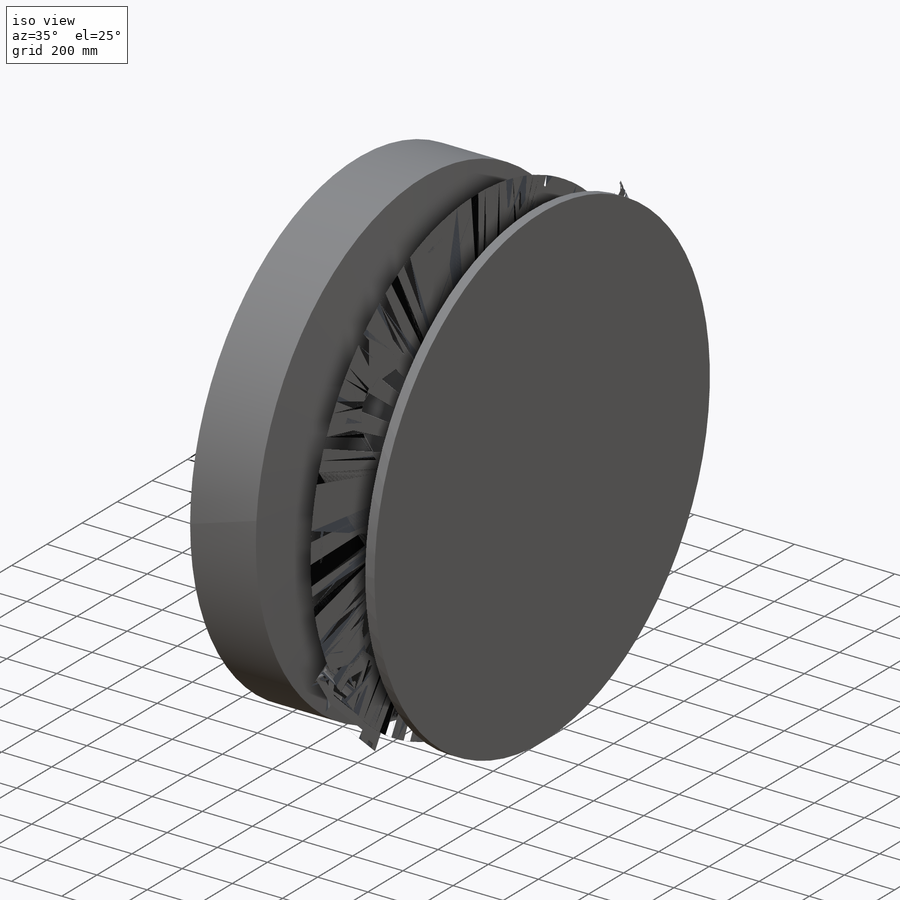
[diagram: iso view]
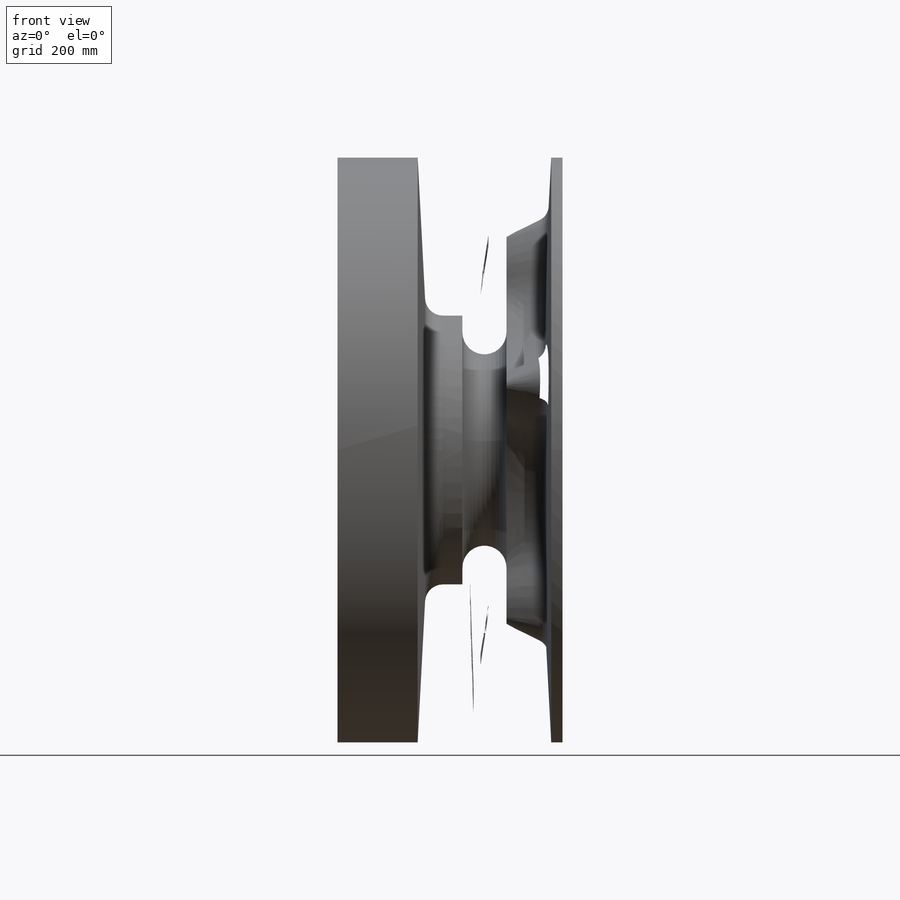
[diagram: front view]
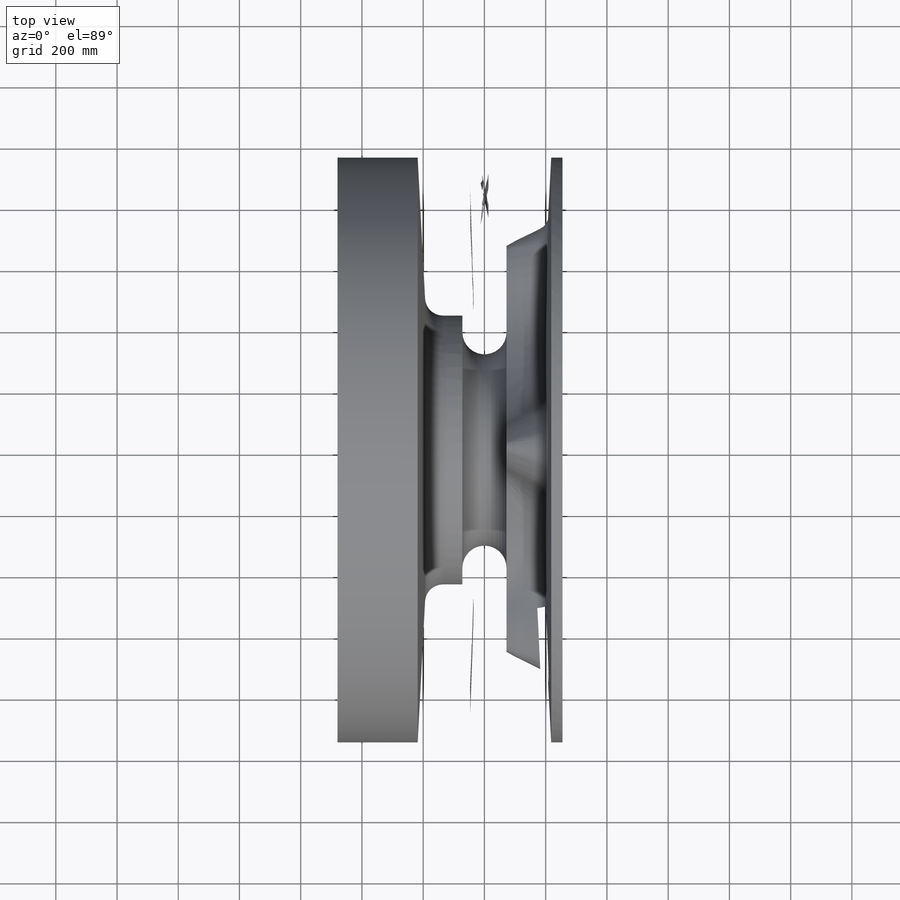
[diagram: top view]
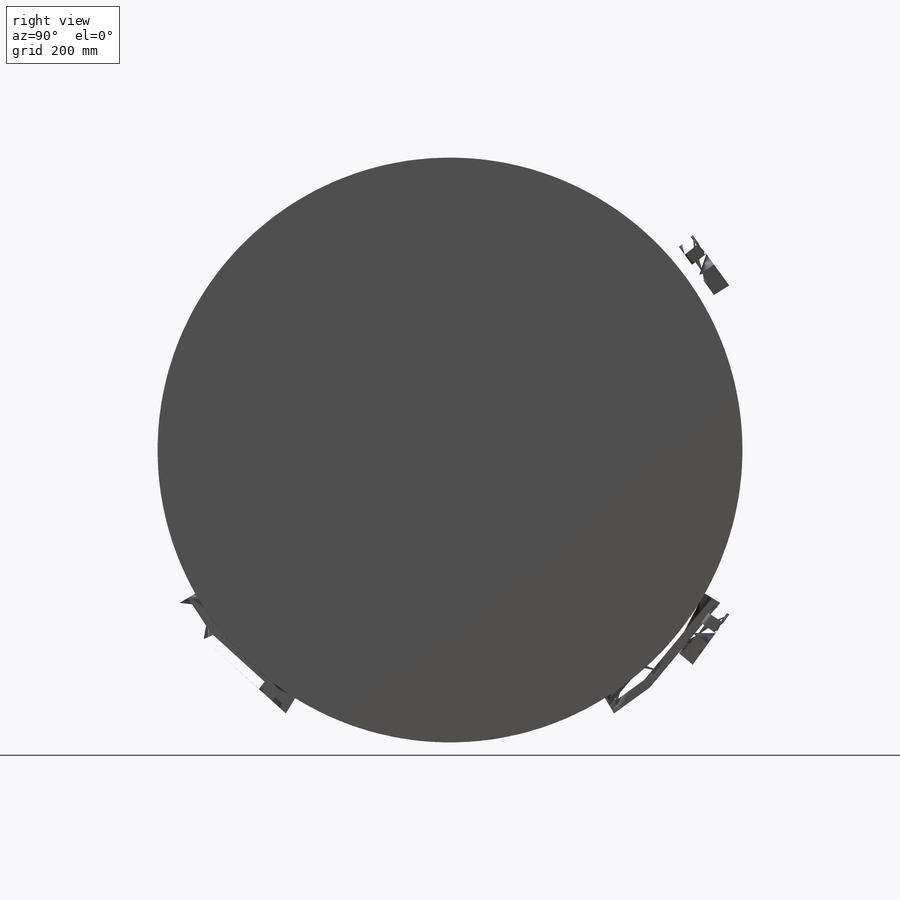
[diagram: right view]
SOLIDWORKS PART (.sldprt)
format: sldprt  version: not decoded by parser v0  size: 1,678,336 bytes
history: native  units: mm
features: sketch x28, plane x17, cut_revolve x5, fillet x5, hole x4, cut_extrude x3, revolve x2, material x1, extrude x1, pattern_circular x1, mirror x1, chamfer x1 (+9 scaffold rows collapsed)
feature tree (78):
  scaffold x9  (default folders/planes/origin — collapsed)
  material  "GS- 52"
  plane  "Vorne"
  plane  "Oben"
  plane  "Rechts"
  sketch  "SkizzeBasiskörper"  dims[c1.D4=20.0mm c1.VerrundungKettenbett=36.0mm c1.D3=36.0mm c1.D8=150.0mm c1.D10=150.0mm c1.D11=80.0mm c1.D12=50.0mm c2.D8=100.0mm c2.D13=75.0mm c2.D10=~49.586607mm c3.D13=40.0mm c3.D14=40.0mm c4.D13=32.0mm c4.D14=32.0mm c5.D13=~41.156892mm c5.D14=~70.295852mm c5.D4=40.0mm c5.D7=72.0mm c5.D3=144.0mm c5.D8=58.5mm c5.D9=72.0mm c6.D3=72.0mm c6.D5=72.0mm c6.D1=200.0mm c6.EntfSteg=70.0mm c6.RadiusUnten=295.0mm c6.RKettennuss=450.0mm c6.srechts=25.0mm c6.slinks=25.0mm c6.D7=145.0mm c6.RadiusInnen=273.0mm c6.D9=385.0mm c6.D10=~1061.716619mm c6.ÖffWinkhalb=3.0deg c6.D11=340.0mm c6.ÖffnWinkel=10.0deg c6.D12=290.0mm c6.sBremse=25.0mm c6.D14=620.0mm c6.Breite=400.0mm c6.D6=200.0mm c7.D7=~290.316717mm c7.StegAußen=72.0mm c7.BreiteSteg=150.0mm c7.BreiteBremsring=200.0mm c7.D2=~60.406771mm c7.D3=~588.684042mm c7.D1=~52.065958mm c7.D4=160.0mm c7.D5=175.0mm c7.D6=380.0mm c7.l1=263.0mm c7.D8=~65.666666mm c7.Wboden=155.0deg c7.D9=75.0mm c7.D10=200.0mm c7.D11=~388.684042mm c8.D7=~153.534317mm c8.Breite=337.5mm c8.halbe Breite=163.0mm c8.BreiteBremse=200.0mm c8.BreiteUnten=238.0mm c9.Breite=330.0mm c9.D1=~225.095496mm c9.Bremsschräge=3.0deg c9.BreiteBremsAbsatz=15.0mm c9.RABremsabsatz=785.0mm c9.RIBremsabsatz=780.0mm c9.RKettennussBremsseite=485.0mm c10.D1=238.0mm c10.D7=263.0mm c10.D8=90.0mm c10.D10=45.0mm c10.D11=~232.085698mm c10.l1=244.0mm c10.BreiteKettennuss=598.0mm c10.halbeBreiteKettenbett=190.0mm c11.D1=~267.306411mm c12.D1=2.0deg c12.D3=675.0mm c12.D7=150.0mm c12.D13=305.0mm c12.D8=275.0mm c12.D10=78.0mm c13.D3=30.0mm c13.D14=~95.411577mm c13.D13=210.0mm c14.D14=~158.503311mm c15.D14=5.0deg c15.D10=~107.406771mm c15.D7=106.0mm c16.D10=106.0mm c16.D2=240.0mm c16.D13=130.0mm c16.D14=475.0mm c16.D15=30.0mm c16.D3=140.0mm c17.D15=482.0mm c17.D16=30.0mm c17.D17=212.0mm c18.D15=10.0mm c18.D18=7.0mm c18.D3=10.0mm c18.D4=~28.23539mm c18.D2=1042.0mm c19.D3=488.0mm c19.D4=1910.0mm c19.D5=625.0mm c20.D3=~67.626126mm c20.D6=439.0mm c20.D1=382.0mm c20.D7=72.0mm c20.D9=54.5mm c20.D5=625.0mm c20.D2=510.0mm c21.D6=735.0mm c21.D7=439.0mm c21.D1=1910.0mm]
  revolve  "RotationBasiskörper"  Angle=360deg
  sketch  "Skizze24"  dims[c1.D4=58.5mm c1.D1=~1331.838623mm c2.D1=3.0deg c2.D2=439.0mm c2.D3=~500.120886mm c3.D3=90.0deg c4.D3=382.0mm]
  cut_revolve  "Schnitt-Rotation1"  Angle=360deg
  sketch  "Skizze22"  dims[D1=72.0mm D2=625.0mm]
  cut_revolve  "Schnitt-Rotation2"  Angle=360deg
  plane  "Zahnebene1"  Offset=0mm
  plane  "Zahnebene2"  Offset=29mm
  plane  "Zahnebene3"  Offset=30mm
  plane  "ZahnebeneX"  Offset=120mm
  sketch  "SkizzeZahnebene1"  dims[c1.d3=610.0mm c1.R1x2=224.0mm c1.D1=1120.0mm c1.D2=322.0mm c1.l1x2=488.0mm c1.D5=225.0mm c1.R5=15.0mm c1.R2=144.0mm c2.R1x2=200.0mm c2.R4=500.0mm c2.R3=115.0mm c2.D1=1098.0mm c2.D2=180.0mm c2.D3=24.0mm c2.D4=258.0mm c2.D6=206.0mm c2.D8=206.0mm c2.D7=206.0mm c3.D6=900.0mm c3.D7=1800.0mm c3.D8=206.0mm c3.D5=~395.417629mm c4.D5=~68.118951deg c5.D5=~395.417629mm c5.Zahnwinkel=36.0deg c5.D6=~380.214334mm c6.D6=36.0deg c6.Abstand1=10.0mm c6.Abstand2=10.0mm c6.D5=~864.45178mm c7.D5=36.0deg c7.D7=439.0mm]
  sketch  "SkizzeZahnebene2"  dims[c1.R1x2=200.0mm c1.d3=24.0mm c1.l1neu=496.0mm c1.R5=23.0mm c1.R2=152.0mm c1.R4=500.0mm c1.R3=140.0mm c1.D1=900.0mm c1.D3=273.5mm c1.D4=38.0mm c1.D5=251.0mm c2.D1=~411.487122mm c2.Zahnwinkel=36.0deg c2.Abstand2=10.0mm c2.Abstand1=10.0mm c2.D2=7.0mm]
  sketch  "SkizzeZahnebene3"  dims[c1.R1x2=200.0mm c1.l1neu=504.0mm c1.d3=610.0mm c1.D1=560.0mm c1.D2=179.0mm c1.D4=38.0mm c1.D5=196.0mm c1.R5=31.0mm c1.R2=160.0mm c1.R4=500.0mm c1.R3=175.0mm c2.D2=52.0mm c2.D3=24.0mm c2.D1=52.0mm c3.D2=315.0mm c3.D3=900.0mm c3.D1=288.0mm c3.D5=52.0mm c4.D1=~911.05459mm c4.Zahnwinkel=36.0deg c4.Abstand1=10.0mm c4.Abstand2=10.0mm c5.D1=14.0mm c5.D4=14.0mm]
  sketch  "SkizzeZahnebene2<2>"
  sketch  "Skizze25"
  sketch  "Skizze26"
  sketch  "Skizze27"
  sketch  "Skizze28"
  sketch  "SkizzeZahnebeneX"  dims[c1.R1x2=208.0mm c1.l1neu=542.0mm c1.d3=610.0mm c1.R5=47.0mm c1.R2=185.0mm c1.R4=500.0mm c1.R3=190.0mm c1.D1=355.0mm c1.D3=900.0mm c1.D4=108.0mm c1.D5=505.0mm c2.D3=1800.0mm c2.D1=~990.242836mm c2.Zahnwinkel=36.0deg c2.Abstand2=35.0mm c2.Abstand1=35.0mm c2.D2=35.0mm c3.D3=~61.769436mm c4.D3=~91.468491deg c5.D3=~61.769436mm c5.D2=35.0mm c6.D3=474.0mm]
  sketch  "Skizze30"  dims[D1=0.0mm]
  extrude  "Aufsatz-Linear austragen1"  [1 undecoded]
  pattern_circular  "Kreismuster1"  Count=5 Angle=360deg
  fillet  "Verrundung10"  Radius=50mm
  plane  "Spiegelebene"  Offset=40mm
  sketch  "SkizzeBereinigungRechts"  dims[c1.D2=50.0mm c1.D3=~51.789615mm c2.D2=25.0mm c2.D3=50.0mm c2.D4=50.0mm c2.D1=35.0mm c3.D2=25.0mm c3.D1=32.5mm c4.D2=25.0mm c4.D1=~30.311156mm c4.D3=100.0mm c5.D1=100.0mm c5.D5=127.0mm c5.D2=~114.243645mm c6.D2=3.0deg c6.D3=~32.521339mm c6.D1=25.0mm c7.D3=25.0mm]
  cut_revolve  "Schnitt-Rotation Bereinigung Rechts"  Angle=360deg
  sketch  "SkizzeBereinigungLinks"  dims[c1.D1=40.0mm c1.D2=32.5mm c1.D4=30.0mm c2.D1=33.0mm c2.D2=271.0mm c2.D3=30.0mm]
  cut_revolve  "Schnitt-Rotation Bereinigung Kupplungsseite"  Angle=360deg
  sketch  "SkizzeKupplung"  dims[Breite=48.0mm R_Außen=310.0mm R_Innen=195.0mm D4=50.0mm Aushebeschräge=3.0deg]
  revolve  "Rotation Kupplung"  Angle=30deg
  fillet  "Verrundung Kupplung unten"  Radius=5mm
  sketch  "SkizzeKupplungFräsen"  dims[FräsbreiteRechts=10.0mm FräsbreiteLinks=10.0mm]
  cut_extrude  "AbfräsenKupplungsseiten"  [1 undecoded]
  fillet  "VerrundungKupplungSeite"  Radius=2.5mm
  fillet  "Verrundung1"  Radius=15mm
  plane  "Ebene1"
  plane  "Ebene2"
  plane  "Ebene3"
  plane  "Ebene4"
  plane  "Ebene7"  Offset=260mm
  sketch  "Skizze9"  dims[D1=160.0mm D2=130.0mm D3=30.0mm D4=60.0mm]
  cut_extrude  "Schnitt-Linear austragen4"  Depth=30mm
  hole  "Ø9 Schmierbohrung"  Diameter=9mm Depth=280mm
  sketch  "Skizze4"  dims[c1.D1=~33.707249mm c1.D2=35.0mm c2.D1=10.0mm c2.D2=~77.847343mm c3.D1=70.0mm]
  sketch  "Skizze3"  dims[hole-wizard template sketch: 46 standard entries collapsed; hole parameters kept: c15.Bohrerdurchmesser=9.0mm c15.Bohrungstiefe=280.0mm c15.D3=~14.816244mm c15.Spitzenwinkel=180.0deg]
  hole  "M16 Gewindebohrung1"  Diameter=14mm Depth=26mm
  sketch  "Skizze11"
  sketch  "Skizze10"  dims[hole-wizard template sketch: 46 standard entries collapsed; hole parameters kept: c15.Bohrerdurchmesser=14.0mm c15.Bohrungstiefe=26.0mm c15.D3=~14.816244mm c15.Spitzenwinkel=118.0deg]
  plane  "Ebene5"  Offset=200mm
  mirror  "Spiegeln1"
  fillet  "Verrundung4"  Radius=1mm
  plane  "Ebene6"  Offset=260mm
  sketch  "Skizze12"  dims[c1.D1=~22.360296mm c1.D2=~62.821785mm c2.D1=456.0mm c2.D2=15.0mm c2.D3=50.0mm c2.D4=40.0mm]
  cut_revolve  "Eindregung Geberblech"  Angle=360deg
  chamfer  "Fase1"  Distance=2mm Angle=45deg
  plane  "Ebene8"
  plane  "Ebene10"
  sketch  "Skizze16"  dims[D1=60.0mm D2=30.0mm D3=120.0mm D4=60.0mm]
  cut_extrude  "Schnitt-Linear austragen5"  Depth=40mm
  hole  "Ø9.0 Schmierbohrung1"  Diameter=9mm Depth=65mm
  sketch  "Skizze18"  dims[D1=40.0mm]
  sketch  "Skizze17"  dims[hole-wizard template sketch: 46 standard entries collapsed; hole parameters kept: c15.Bohrerdurchmesser=9.0mm c15.Bohrungstiefe=65.0mm c15.D3=~14.816244mm c15.Spitzenwinkel=180.0deg]
  hole  "M16 Gewindebohrung2"  Diameter=14mm Depth=26mm
  sketch  "Skizze21"
  sketch  "Skizze20"  dims[hole-wizard template sketch: 46 standard entries collapsed; hole parameters kept: c15.Bohrerdurchmesser=14.0mm c15.Bohrungstiefe=26.0mm c15.D3=~14.816244mm c15.Spitzenwinkel=118.0deg]
decode coverage: 41 of 51 modeling features carry decoded parameters
note: ~ marks probable driven/reference dimensions
note: 2 parameter values undecoded
summary: Diameter pulled from absorbed wizard sketch
note: suppression state not decoded; provenance and decode notes live in map.json
